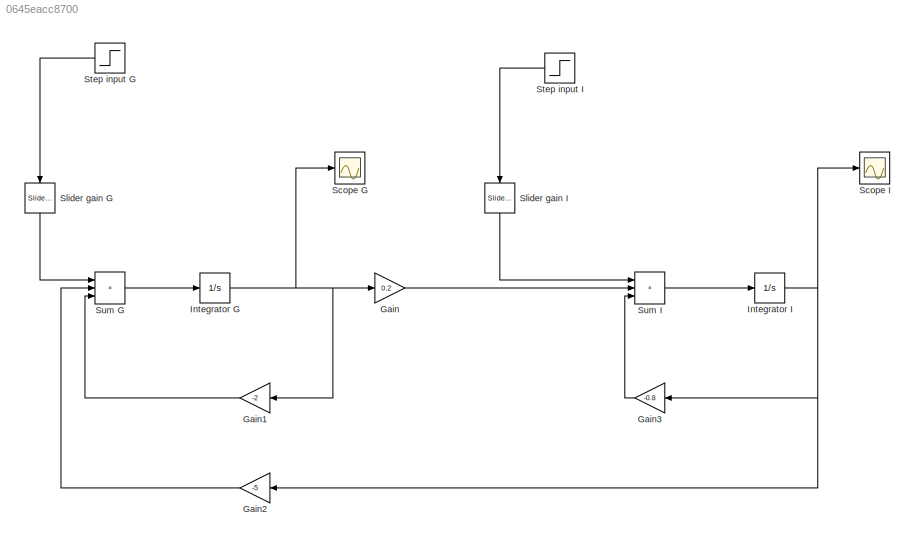
MODEL slx_0645eacc8700
KIND model
CONFIG AbsTol = auto
CONFIG EnableMultiTasking = off
CONFIG FixedStep = auto
CONFIG MaxStep = auto
CONFIG MinStep = auto
CONFIG RelTol = 1e-3
CONFIG SampleTimeConstraint = Unconstrained
CONFIG SolverName = VariableStepAuto
CONFIG StartTime = 0.0
CONFIG StopTime = 10.0
BLOCK [Gain] Gain
  Gain = 0.2
BLOCK [Gain] Gain1
  Gain = -2
BLOCK [Gain] Gain2
  Gain = -5
BLOCK [Gain] Gain3
  Gain = -0.8
BLOCK [Integrator] Integrator G
  Ports = [1, 1]
BLOCK [Integrator] Integrator I
  Ports = [1, 1]
BLOCK [Scope] Scope G
  Floating = off
  NumInputPorts = 1
  Ports = [1]
  ScopeSpecificationString = Simulink.scopes.TimeScopeBlockCfg('CurrentConfiguration', extmgr.ConfigurationSet(extmgr.Configuration('Core','General UI',true),extmgr.Configuration('Core','Source UI',true),extmgr.Configuration('Sources','WiredSimulink',true),extmgr.Configuration('Visuals','Time Domain',true,'SerializedDisplays',{struct('MinYLimReal','-0.04793','MaxYLimReal','0.43137','YLabelReal','','MinYLimMag','0.00000','MaxY...<+1363ch>
BLOCK [Scope] Scope I
  Floating = off
  NumInputPorts = 1
  Ports = [1]
  ScopeSpecificationString = Simulink.scopes.TimeScopeBlockCfg('CurrentConfiguration', extmgr.ConfigurationSet(extmgr.Configuration('Core','General UI',true),extmgr.Configuration('Core','Source UI',true),extmgr.Configuration('Sources','WiredSimulink',true,'DataLoggingVariableName','ScopeData1'),extmgr.Configuration('Visuals','Time Domain',true,'SerializedDisplays',{struct('MinYLimReal','-0.00965','MaxYLimReal','0.08689','YLab...<+1404ch>
BLOCK [Reference] Slider gain G  REF=simulink/Math
Operations/Slider
Gain
  NameLocation = left
  Ports = [1, 1]
  SourceBlock = simulink/Math\nOperations/Slider\nGain
  SourceProductBaseCode = SL
  SourceType = Slider Gain
BLOCK [Reference] Slider gain I  REF=simulink/Math
Operations/Slider
Gain
  NameLocation = left
  Ports = [1, 1]
  SourceBlock = simulink/Math\nOperations/Slider\nGain
  SourceProductBaseCode = SL
  SourceType = Slider Gain
BLOCK [Step] Step input G
  SampleTime = 0
BLOCK [Step] Step input I
  SampleTime = 0
BLOCK [Sum] Sum G
  IconShape = rectangular
  Inputs = +++
  Ports = [3, 1]
BLOCK [Sum] Sum I
  IconShape = rectangular
  Inputs = +++
  Ports = [3, 1]
LINE Gain1:1 -> Sum G:3
LINE Gain2:1 -> Sum G:2
LINE Gain3:1 -> Sum I:3
LINE Gain:1 -> Sum I:2
NET Integrator G:1 -> Gain1:1, Gain:1, Scope G:1
NET Integrator I:1 -> Gain2:1, Gain3:1, Scope I:1
LINE Slider gain G:1 -> Sum G:1
LINE Slider gain I:1 -> Sum I:1
LINE Step input G:1 -> Slider gain G:1
LINE Step input I:1 -> Slider gain I:1
LINE Sum G:1 -> Integrator G:1
LINE Sum I:1 -> Integrator I:1
note: NET lines group one-source signal fan-out (src -> all destinations, sorted); 1:1 wires keep LINE
